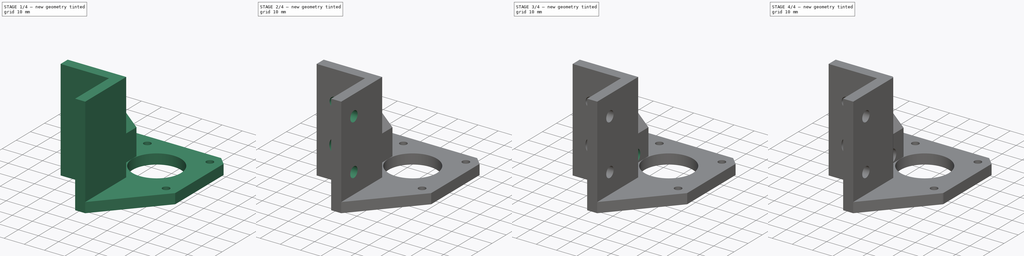
[diagram: build sequence overview — one tinted view per stage of 4, left to right]
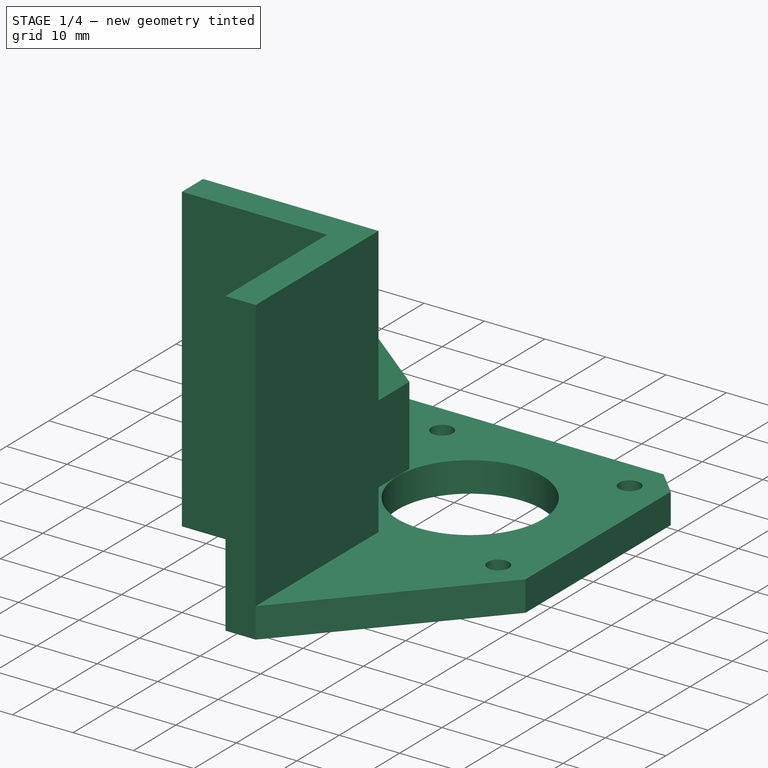
[diagram: stage 1 of 4 — iso view after this stage's code; geometry added in this stage tinted green]
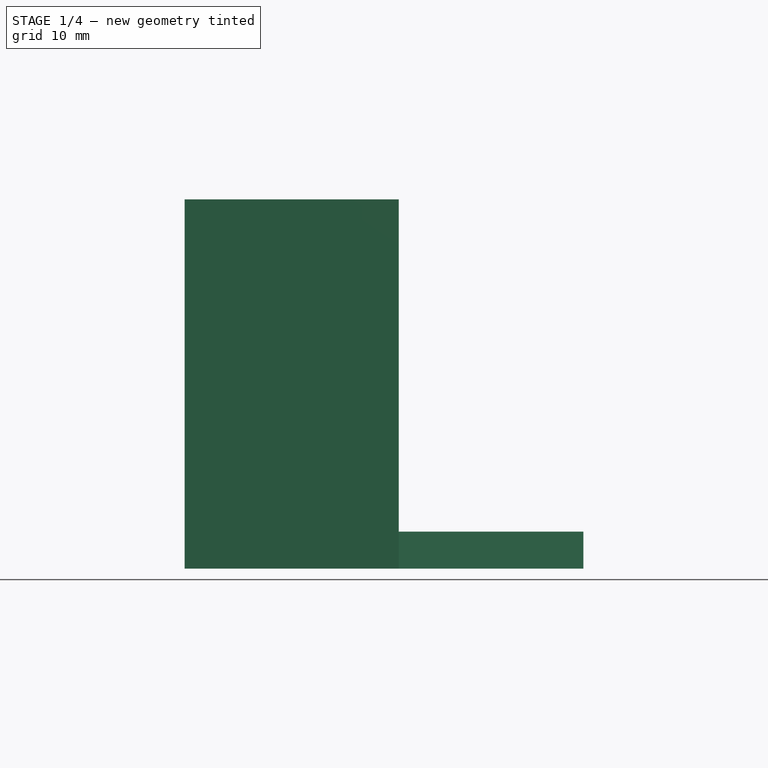
[diagram: stage 1 of 4 — front view after this stage's code; geometry added in this stage tinted green]
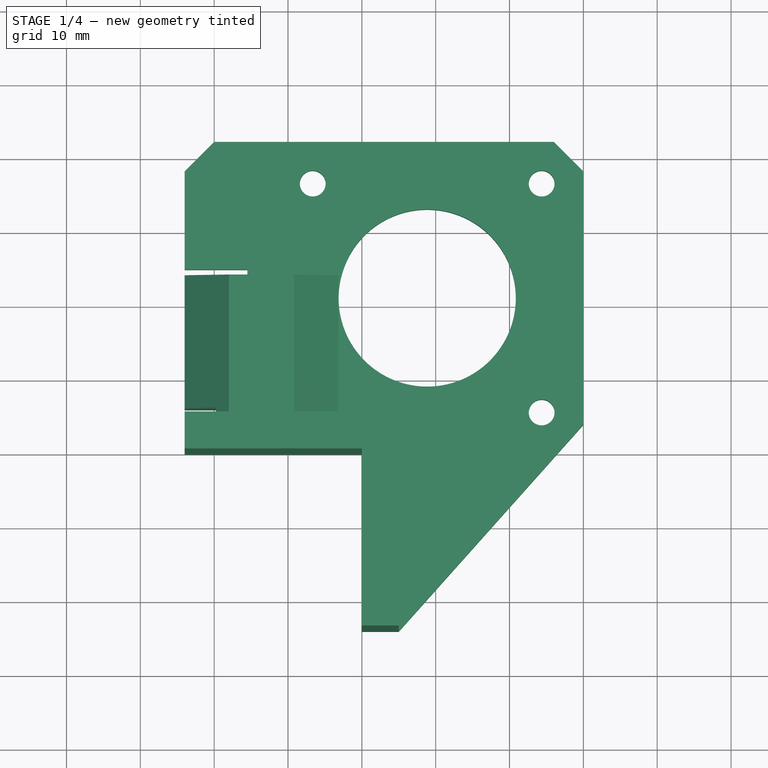
[diagram: stage 1 of 4 — top view after this stage's code; geometry added in this stage tinted green]
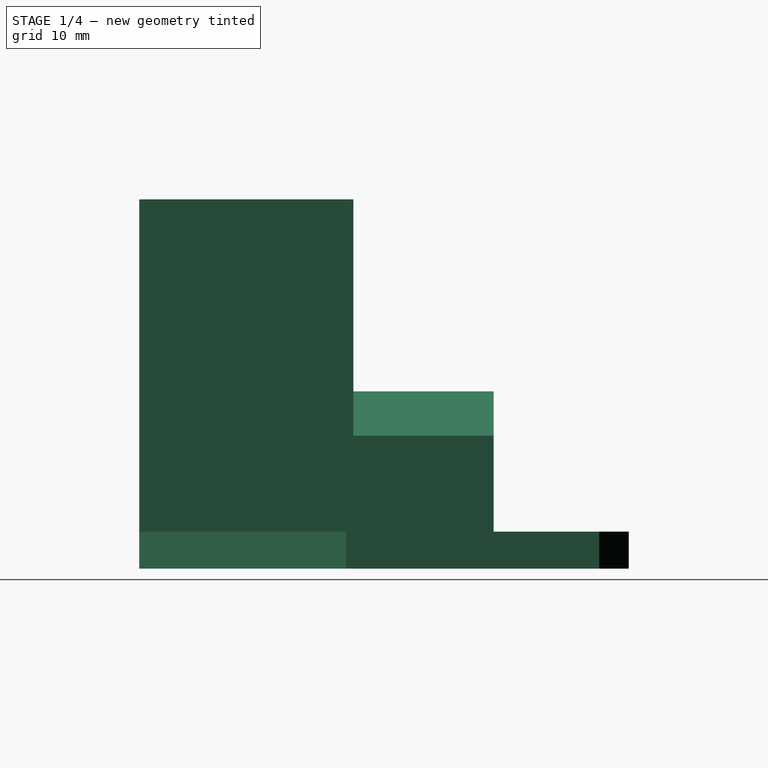
[diagram: stage 1 of 4 — right view after this stage's code; geometry added in this stage tinted green]
FCSTD DOCUMENT  (FreeCAD 0.17R13424 (Git))
Label: Corelia_0_stepper_mount
License: All rights reserved
LicenseURL: http://en.wikipedia.org/wiki/All_rights_reserved
objects: Sketcher::SketchObject×11, PartDesign::Pocket×8, PartDesign::Pad×3, PartDesign::Fillet×2, PartDesign::Chamfer×1, PartDesign::Body×1
note: 37 computed .brp shape members not serialized (recipe doc carries the construction recipe); baked Part::Feature solids carry a one-line shape summary decoded from their .brp

FEATURE [Sketcher::SketchObject] Sketch
  MapMode = 5
  Support = -> [XY_Plane]
  sketch-geometry (21):
    g0: LineSegment StartX=0 StartY=0 StartZ=0 EndX=-24 EndY=0 EndZ=0
    g1: LineSegment StartX=-24 StartY=0 StartZ=0 EndX=-24 EndY=5 EndZ=0
    g2: LineSegment StartX=-24 StartY=5 StartZ=0 EndX=-15.5 EndY=5 EndZ=0
    g3: LineSegment StartX=-15.5 StartY=5 StartZ=0 EndX=-15.5 EndY=25 EndZ=0
    g4: LineSegment StartX=-15.5 StartY=25 StartZ=0 EndX=-24 EndY=25 EndZ=0
    g5: LineSegment StartX=-24 StartY=25 StartZ=0 EndX=-24 EndY=38.3 EndZ=0
    g6: LineSegment StartX=-24 StartY=38.3 StartZ=0 EndX=-20 EndY=42.3 EndZ=0
    g7: LineSegment StartX=-20 StartY=42.3 StartZ=0 EndX=26 EndY=42.3 EndZ=0
    g8: LineSegment StartX=26 StartY=42.3 StartZ=0 EndX=30 EndY=38.3 EndZ=0
    g9: LineSegment StartX=30 StartY=38.3 StartZ=0 EndX=30 EndY=4 EndZ=0
    g10: LineSegment StartX=30 StartY=4 StartZ=0 EndX=5 EndY=-24 EndZ=0
    g11: LineSegment StartX=5 StartY=-24 StartZ=0 EndX=0 EndY=-24 EndZ=0
    g12: LineSegment StartX=0 StartY=-24 StartZ=0 EndX=0 EndY=0 EndZ=0
    g13: Circle CenterX=8.85 CenterY=21.15 CenterZ=0 NormalX=0 NormalY=0 NormalZ=1 AngleXU=0 Radius=12
    g14: LineSegment [constr] StartX=-6.65 StartY=36.65 StartZ=0 EndX=24.35 EndY=36.65 EndZ=0
    g15: LineSegment [constr] StartX=24.35 StartY=36.65 StartZ=0 EndX=24.35 EndY=5.65 EndZ=0
    g16: LineSegment [constr] StartX=24.35 StartY=5.65 StartZ=0 EndX=-6.65 EndY=5.65 EndZ=0
    g17: LineSegment [constr] StartX=-6.65 StartY=5.65 StartZ=0 EndX=-6.65 EndY=36.65 EndZ=0
    g18: Circle CenterX=-6.65 CenterY=36.65 CenterZ=0 NormalX=0 NormalY=0 NormalZ=1 AngleXU=0 Radius=1.75
    g19: Circle CenterX=24.35 CenterY=36.65 CenterZ=0 NormalX=0 NormalY=0 NormalZ=1 AngleXU=0 Radius=1.75
    g20: Circle CenterX=24.35 CenterY=5.65 CenterZ=0 NormalX=0 NormalY=0 NormalZ=1 AngleXU=0 Radius=1.75
  constraints (59):
    c: Coincident(g-1,g0)
    c: PointOnObject(g0,g-1)
    c: Coincident(g0,g1)
    c: Vertical(g1)
    c: Coincident(g1,g2)
    c: Horizontal(g2)
    c: Coincident(g3,g4)
    c: Horizontal(g4)
    c: Coincident(g4,g5)
    c: Vertical(g5)
    c: Coincident(g5,g6)
    c: Coincident(g6,g7)
    c: Horizontal(g7)
    c: Coincident(g7,g8)
    c: Coincident(g8,g9)
    c: Vertical(g9)
    c: Coincident(g9,g10)
    c: Coincident(g10,g11)
    c: Horizontal(g11)
    c: Coincident(g11,g12)
    c: Coincident(g12,g0)
    c: Vertical(g12)
    c: DistanceY(g12,g12) = 24
    c: DistanceX(g0,g0) = 24
    c: DistanceX(g2,g2) = 8.5
    c: Vertical(g3)
    c: DistanceX(g7,g8) = 4
    c: DistanceY(g8,g7) = 4
    c: Equal(g6,g8)
    c: DistanceY(g5,g6) = 4
    c: DistanceY(g9,g7) = 38.3
    c: DistanceY(g0,g6) = 42.3
    c: Radius(g13) = 12
    c: DistanceX(g13) = 8.85
    c: DistanceY(g13) = 21.15
    c: DistanceX(g13,g9) = 21.15
    c: DistanceY(g1,g1) = 5
    c: Coincident(g14,g15)
    c: Coincident(g15,g16)
    c: Coincident(g16,g17)
    c: Coincident(g17,g14)
    c: Horizontal(g14)
    c: Horizontal(g16)
    c: Vertical(g15)
    c: Vertical(g17)
    c: Equal(g17,g14)
    c: DistanceY(g15,g14) = 31
    c: DistanceX(g13,g15) = 15.5
    c: DistanceY(g15,g13) = 15.5
    c: Coincident(g18,g14)
    c: Coincident(g19,g14)
    c: Coincident(g20,g15)
    c: Equal(g18,g19)
    c: Equal(g19,g20)
    c: Radius(g18) = 1.75
    c: Coincident(g3,g2)
    c: DistanceY(g3,g3) = 20
    c: Equal(g4,g2)
    c: DistanceX(g11,g11) = 5
FEATURE [PartDesign::Pad] Pad
  Length = 5
  Length2 = 100
  Profile = -> Sketch
  Type = 0
FEATURE [Sketcher::SketchObject] Sketch001
  MapMode = 5
  Placement = pos=(0,0,5) rot=(0,0,1;0rad)
  Support = -> [Pad]
  sketch-geometry (6):
    g0: LineSegment StartX=0 StartY=0 StartZ=0 EndX=-24 EndY=0 EndZ=0
    g1: LineSegment StartX=-24 StartY=0 StartZ=0 EndX=-24 EndY=5 EndZ=0
    g2: LineSegment StartX=-24 StartY=5 StartZ=0 EndX=5 EndY=5 EndZ=0
    g3: LineSegment StartX=5 StartY=5 StartZ=0 EndX=5 EndY=-24 EndZ=0
    g4: LineSegment StartX=5 StartY=-24 StartZ=0 EndX=0 EndY=-24 EndZ=0
    g5: LineSegment StartX=0 StartY=-24 StartZ=0 EndX=0 EndY=0 EndZ=0
  constraints (17):
    c: Coincident(g-1,g0)
    c: PointOnObject(g0,g-1)
    c: Coincident(g0,g1)
    c: Vertical(g1)
    c: Coincident(g1,g2)
    c: Horizontal(g2)
    c: Coincident(g2,g3)
    c: Vertical(g3)
    c: Coincident(g3,g4)
    c: PointOnObject(g4,g-2)
    c: Horizontal(g4)
    c: Coincident(g4,g5)
    c: Coincident(g5,g0)
    c: Equal(g1,g4)
    c: DistanceY(g1,g1) = 5
    c: Equal(g5,g0)
    c: DistanceY(g5,g5) = 24
FEATURE [PartDesign::Pad] Pad001
  BaseFeature = -> Pad
  Length = 45
  Length2 = 100
  Profile = -> Sketch001
  Type = 0
FEATURE [Sketcher::SketchObject] Sketch002
  MapMode = 5
  Placement = pos=(0,5,0) rot=(0,0.707107,0.707107;3.14159rad)
  Support = -> [Pad001]
  sketch-geometry (8):
    g0: LineSegment StartX=24 StartY=0 StartZ=0 EndX=24 EndY=18 EndZ=0
    g1: LineSegment StartX=24 StartY=18 StartZ=0 EndX=18 EndY=24 EndZ=0
    g2: LineSegment StartX=18 StartY=24 StartZ=0 EndX=9.2 EndY=24 EndZ=0
    g3: LineSegment StartX=9.2 StartY=24 StartZ=0 EndX=3.2 EndY=18 EndZ=0
    g4: LineSegment StartX=3.2 StartY=18 StartZ=0 EndX=3.2 EndY=5 EndZ=0
    g5: LineSegment StartX=3.2 StartY=5 StartZ=0 EndX=16.5 EndY=5 EndZ=0
    g6: LineSegment StartX=16.5 StartY=5 StartZ=0 EndX=16.5 EndY=0 EndZ=0
    g7: LineSegment StartX=16.5 StartY=0 StartZ=0 EndX=24 EndY=0 EndZ=0
  constraints (24):
    c: Vertical(g0)
    c: Coincident(g0,g1)
    c: Coincident(g1,g2)
    c: Horizontal(g2)
    c: Coincident(g2,g3)
    c: Coincident(g3,g4)
    c: Vertical(g4)
    c: DistanceX(g4,g0) = 20.8
    c: DistanceY(g0,g1) = 24
    c: Equal(g3,g1)
    c: Angle(g3,g2) = 2.35619
    c: Angle(g2,g1) = 2.35619
    c: Coincident(g5,g4)
    c: Horizontal(g5)
    c: Coincident(g6,g5)
    c: Vertical(g6)
    c: Coincident(g7,g6)
    c: Horizontal(g7)
    c: Coincident(g7,g0)
    c: DistanceY(g6,g5) = 5
    c: DistanceX(g5) = 16.5
    c: DistanceY(g5) = 5
    c: DistanceX(g7,g7) = 7.5
    c: DistanceY(g0,g0) = 18
FEATURE [PartDesign::Pad] Pad002
  BaseFeature = -> Pad001
  Length = 19
  Length2 = 100
  Profile = -> Sketch002
  Type = 0
FEATURE [Sketcher::SketchObject] Sketch003
  MapMode = 5
  Placement = pos=(0,5,0) rot=(0,0.707107,0.707107;3.14159rad)
  Support = -> [Pad002]
  sketch-geometry (5):
    g0: LineSegment StartX=15.5 StartY=0 StartZ=0 EndX=15.5 EndY=18 EndZ=0
    g1: LineSegment StartX=24 StartY=18 StartZ=0 EndX=24 EndY=0 EndZ=0
    g2: LineSegment StartX=24 StartY=0 StartZ=0 EndX=15.5 EndY=0 EndZ=0
    g3: LineSegment StartX=15.5 StartY=18 StartZ=0 EndX=19.75 EndY=22.25 EndZ=0
    g4: LineSegment StartX=19.75 StartY=22.25 StartZ=0 EndX=24 EndY=18 EndZ=0
  constraints (15):
    c: PointOnObject(g0,g-1)
    c: Vertical(g0)
    c: Vertical(g1)
    c: Coincident(g1,g2)
    c: Horizontal(g2)
    c: Coincident(g2,g0)
    c: DistanceX(g2,g2) = 8.5
    c: DistanceX(g-1,g0) = 15.5
    c: Coincident(g0,g3)
    c: Coincident(g3,g4)
    c: Coincident(g4,g1)
    c: Angle(g0,g3) = 2.35619
    c: Angle(g4,g1) = 2.35619
    c: Equal(g0,g1)
    c: DistanceY(g1,g1) = 18
FEATURE [PartDesign::Pocket] Pocket
  BaseFeature = -> Pad002
  Length = 1
  Length2 = 100
  Profile = -> Sketch003
  Reversed = true
  Type = 0
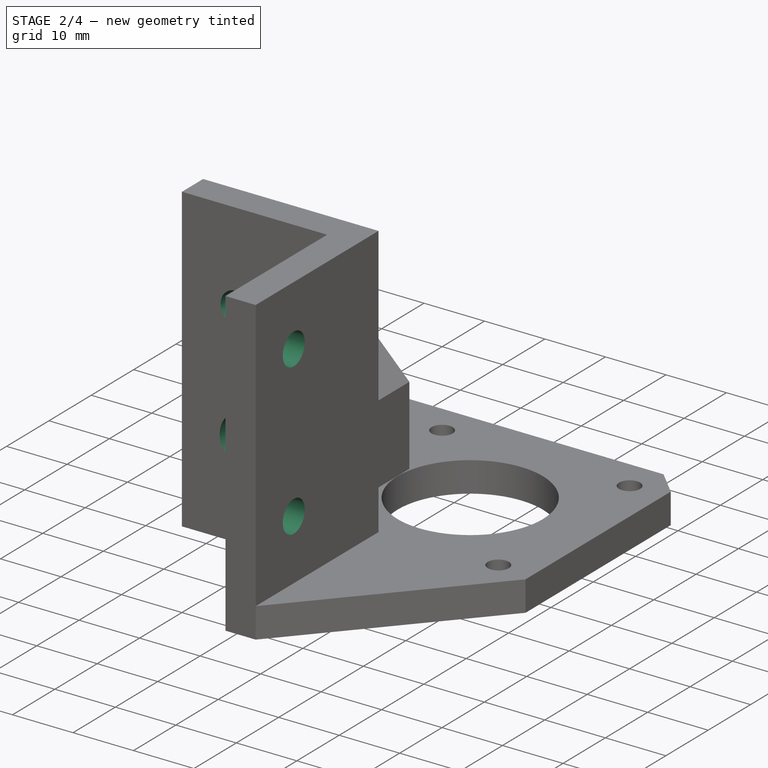
[diagram: stage 2 of 4 — iso view after this stage's code; geometry added in this stage tinted green]
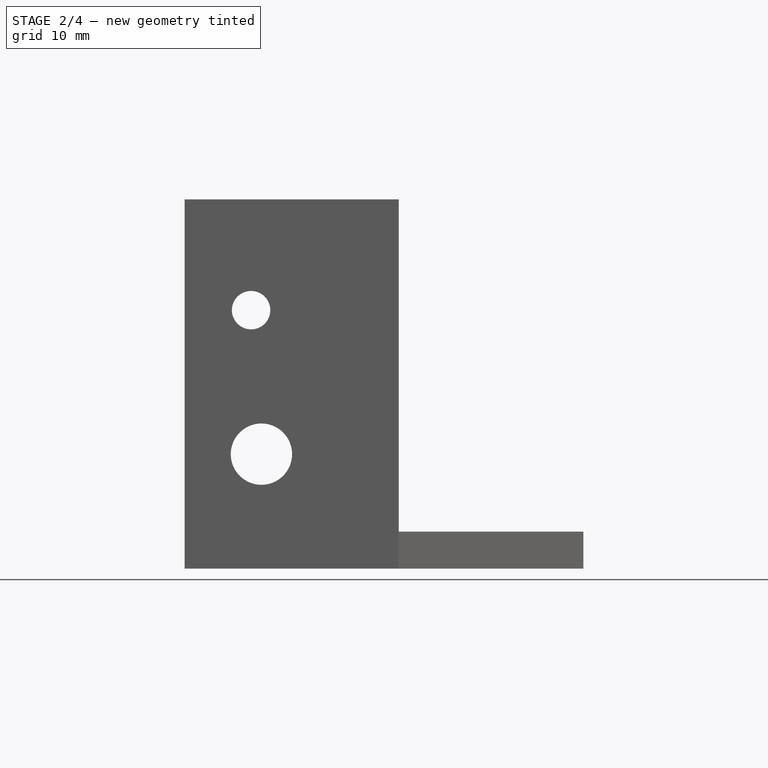
[diagram: stage 2 of 4 — front view after this stage's code; geometry added in this stage tinted green]
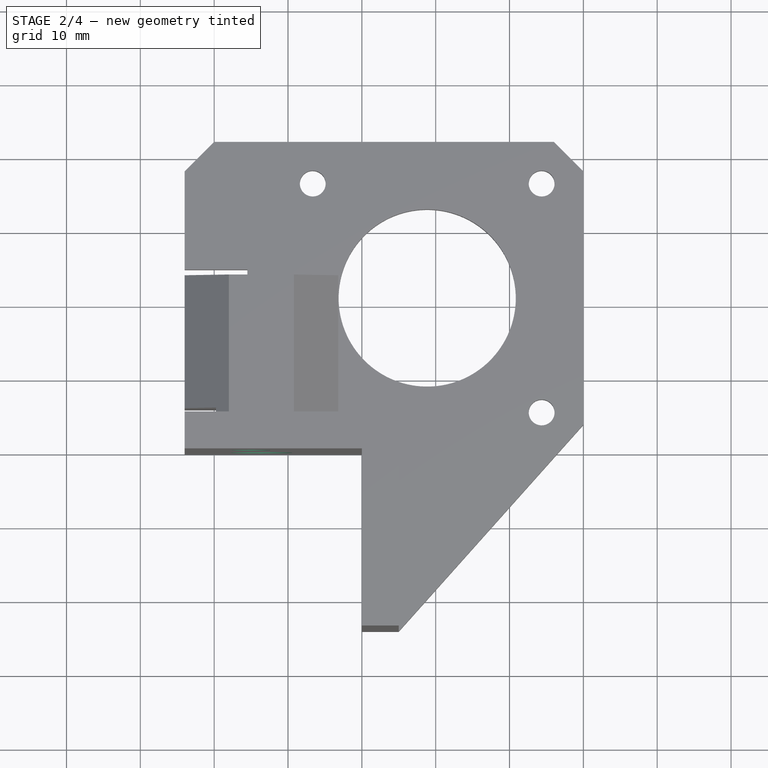
[diagram: stage 2 of 4 — top view after this stage's code; geometry added in this stage tinted green]
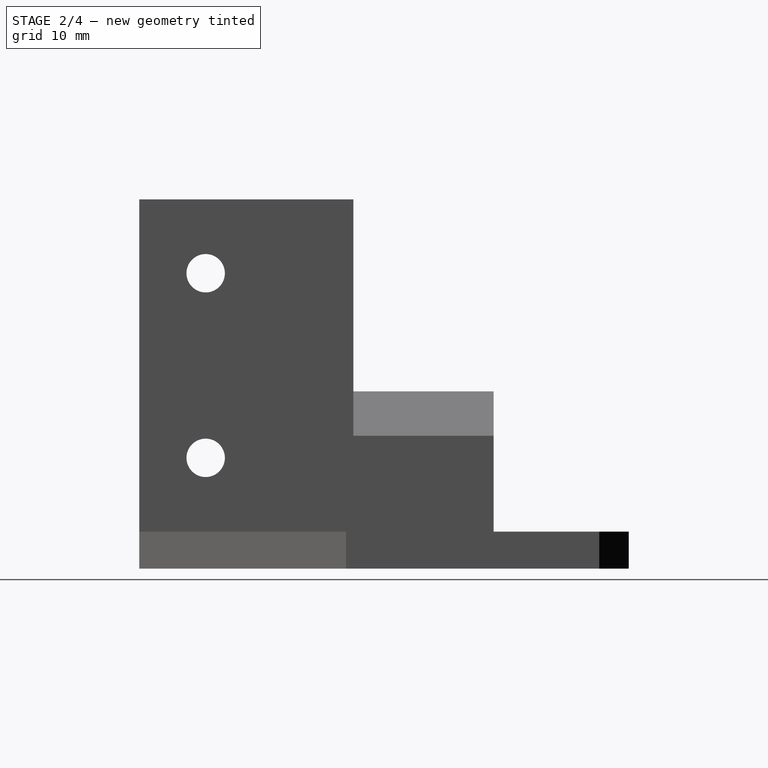
[diagram: stage 2 of 4 — right view after this stage's code; geometry added in this stage tinted green]
FEATURE [Sketcher::SketchObject] Sketch004
  MapMode = 5
  Placement = pos=(0,24,0) rot=(0,0.707107,0.707107;3.14159rad)
  Support = -> [Pocket]
  sketch-geometry (1):
    g0: Circle CenterX=13.6 CenterY=15.5 CenterZ=0 NormalX=0 NormalY=0 NormalZ=1 AngleXU=0 Radius=4.15
  constraints (3):
    c: DistanceX(g0) = 13.6
    c: DistanceY(g0) = 15.5
    c: Radius(g0) = 4.15
FEATURE [PartDesign::Pocket] Pocket001
  BaseFeature = -> Pocket
  Length = 0
  Length2 = 100
  Profile = -> Sketch004
  Type = 1
FEATURE [Sketcher::SketchObject] Sketch005
  MapMode = 5
  Placement = pos=(0,0,0) rot=(1,0,0;1.5708rad)
  Support = -> [Pocket001]
  sketch-geometry (1):
    g0: Circle CenterX=-15 CenterY=35 CenterZ=0 NormalX=0 NormalY=0 NormalZ=1 AngleXU=0 Radius=2.6
  constraints (3):
    c: DistanceX(g0) = -15
    c: DistanceY(g0) = 35
    c: Radius(g0) = 2.6
FEATURE [PartDesign::Pocket] Pocket002
  BaseFeature = -> Pocket001
  Length = 5
  Length2 = 100
  Profile = -> Sketch005
  Type = 1
FEATURE [Sketcher::SketchObject] Sketch006
  MapMode = 5
  Placement = pos=(0,0,0) rot=(0.57735,-0.57735,-0.57735;2.0944rad)
  Support = -> [Pocket002]
  sketch-geometry (2):
    g0: Circle CenterX=15 CenterY=40 CenterZ=0 NormalX=0 NormalY=0 NormalZ=1 AngleXU=0 Radius=2.6
    g1: Circle CenterX=15 CenterY=15 CenterZ=0 NormalX=0 NormalY=0 NormalZ=1 AngleXU=0 Radius=2.6
  constraints (6):
    c: Equal(g0,g1)
    c: DistanceX(g1) = 15
    c: DistanceY(g1) = 15
    c: Radius(g1) = 2.6
    c: DistanceX(g0) = 15
    c: DistanceY(g0) = 40
FEATURE [PartDesign::Pocket] Pocket003
  BaseFeature = -> Pocket002
  Length = 5
  Length2 = 100
  Profile = -> Sketch006
  Type = 0
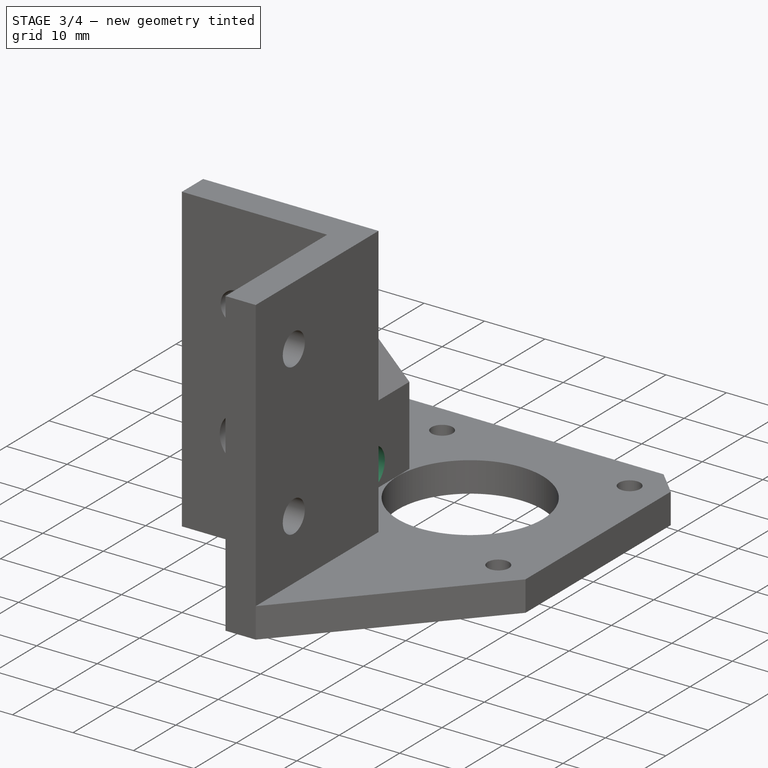
[diagram: stage 3 of 4 — iso view after this stage's code; geometry added in this stage tinted green]
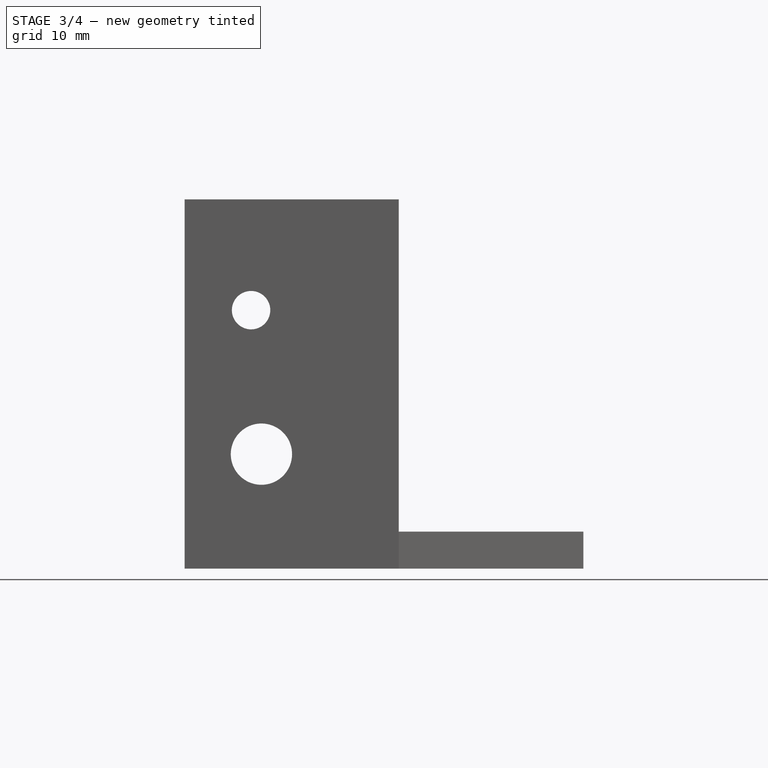
[diagram: stage 3 of 4 — front view after this stage's code; geometry added in this stage tinted green]
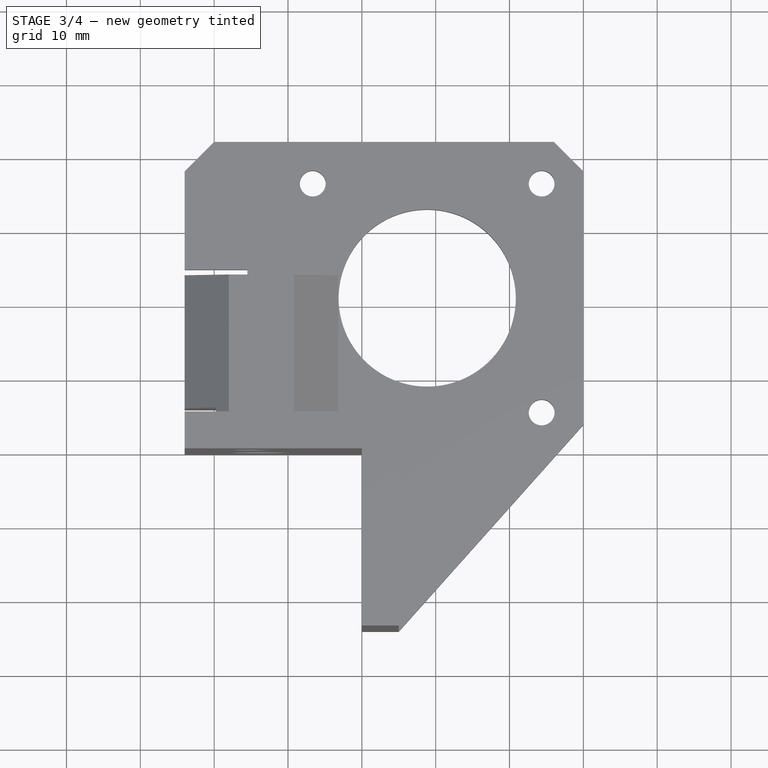
[diagram: stage 3 of 4 — top view after this stage's code; geometry added in this stage tinted green]
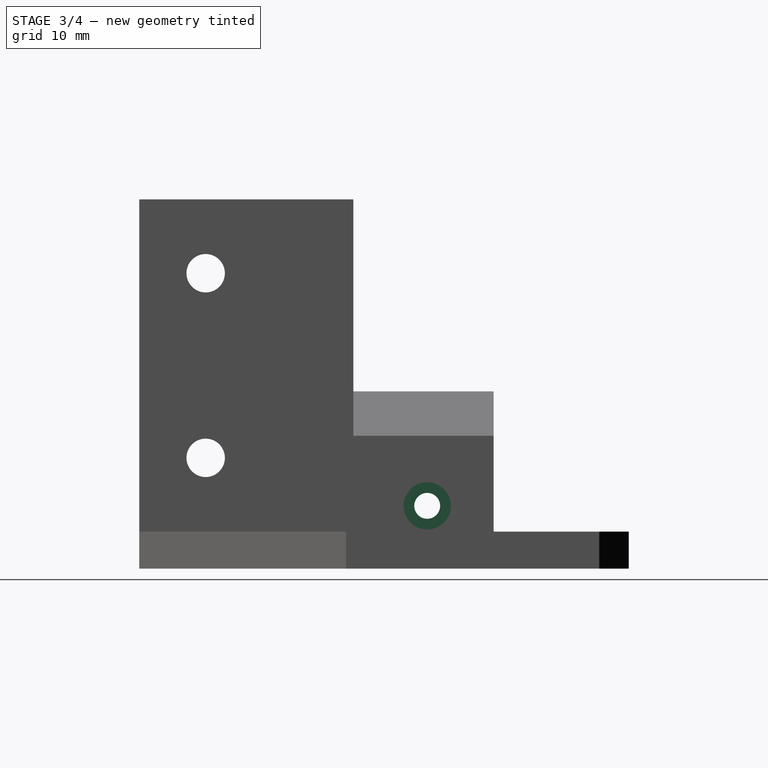
[diagram: stage 3 of 4 — right view after this stage's code; geometry added in this stage tinted green]
FEATURE [Sketcher::SketchObject] Sketch008
  MapMode = 5
  Placement = pos=(-3.2,0,0) rot=(0.57735,0.57735,0.57735;2.0944rad)
  Support = -> [Pocket003]
  sketch-geometry (1):
    g0: Circle CenterX=15 CenterY=8.5 CenterZ=0 NormalX=0 NormalY=0 NormalZ=1 AngleXU=0 Radius=1.75
  constraints (3):
    c: DistanceX(g0) = 15
    c: DistanceY(g0) = 8.5
    c: Radius(g0) = 1.75
FEATURE [PartDesign::Pocket] Pocket004
  BaseFeature = -> Pocket003
  Length = 5
  Length2 = 100
  Profile = -> Sketch008
  Type = 1
FEATURE [Sketcher::SketchObject] Sketch009
  MapMode = 5
  Placement = pos=(-3.2,0,0) rot=(0.57735,0.57735,0.57735;2.0944rad)
  Support = -> [Pocket004]
  sketch-geometry (1):
    g0: Circle CenterX=15 CenterY=8.5 CenterZ=0 NormalX=0 NormalY=0 NormalZ=1 AngleXU=0 Radius=3.2
  constraints (3):
    c: Radius(g0) = 3.2
    c: DistanceX(g0) = 15
    c: DistanceY(g0) = 8.5
FEATURE [PartDesign::Pocket] Pocket005
  BaseFeature = -> Pocket004
  Length = 3
  Length2 = 100
  Profile = -> Sketch009
  Type = 0
FEATURE [Sketcher::SketchObject] Sketch010
  MapMode = 5
  Placement = pos=(-24,0,0) rot=(0.57735,-0.57735,-0.57735;2.0944rad)
  Support = -> [Pocket005]
  sketch-geometry (7):
    g0: LineSegment StartX=-12.1 StartY=6.82568 StartZ=0 EndX=-12.1 EndY=10.1743 EndZ=0
    g1: LineSegment StartX=-12.1 StartY=10.1743 StartZ=0 EndX=-15 EndY=11.8486 EndZ=0
    g2: LineSegment StartX=-15 StartY=11.8486 StartZ=0 EndX=-17.9 EndY=10.1743 EndZ=0
    g3: LineSegment StartX=-17.9 StartY=10.1743 StartZ=0 EndX=-17.9 EndY=6.82568 EndZ=0
    g4: LineSegment StartX=-17.9 StartY=6.82568 StartZ=0 EndX=-15 EndY=5.15137 EndZ=0
    g5: LineSegment StartX=-15 StartY=5.15137 StartZ=0 EndX=-12.1 EndY=6.82568 EndZ=0
    g6: Circle [constr] CenterX=-15 CenterY=8.5 CenterZ=0 NormalX=0 NormalY=0 NormalZ=1 AngleXU=0 Radius=3.34863
  constraints (17):
    c: Coincident(g0,g1)
    c: Coincident(g1,g2)
    c: Coincident(g2,g3)
    c: Coincident(g3,g4)
    c: Coincident(g4,g5)
    c: Coincident(g5,g0)
    c: Equal(g0, g1-g5) x5
    c: PointOnObject(g0,g6)
    c: PointOnObject(g1,g6)
    c: PointOnObject(g2,g6)
    c: PointOnObject(g3,g6)
    c: PointOnObject(g4,g6)
    c: PointOnObject(g5,g6)
    c: Vertical(g0)
    c: DistanceX(g6) = -15
    c: DistanceY(g6) = 8.5
    c: DistanceX(g2,g0) = 5.8
FEATURE [PartDesign::Pocket] Pocket006
  BaseFeature = -> Pocket005
  Length = 4
  Length2 = 100
  Profile = -> Sketch010
  Type = 0
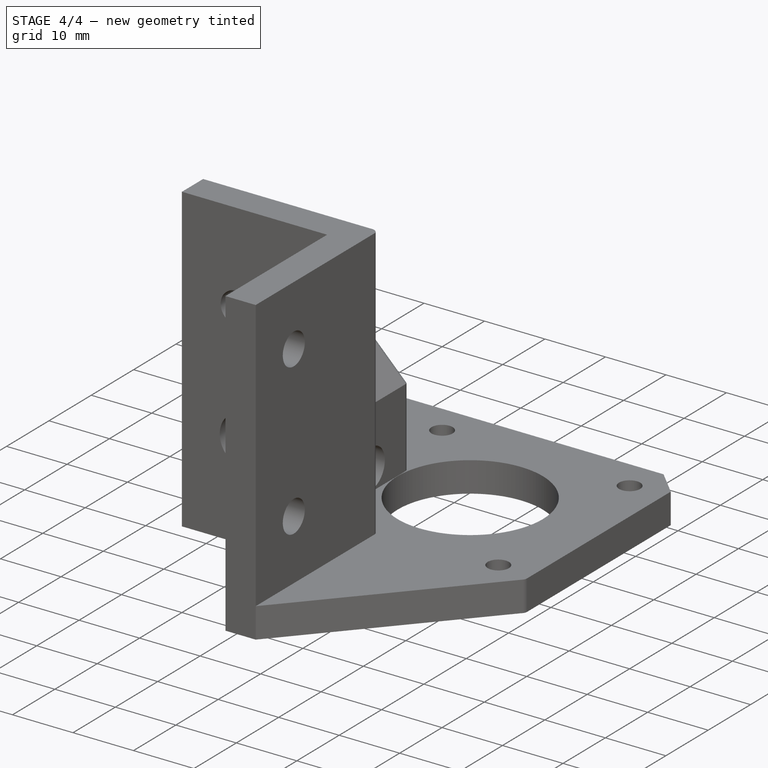
[diagram: stage 4 of 4 — iso view after this stage's code; geometry added in this stage tinted green]
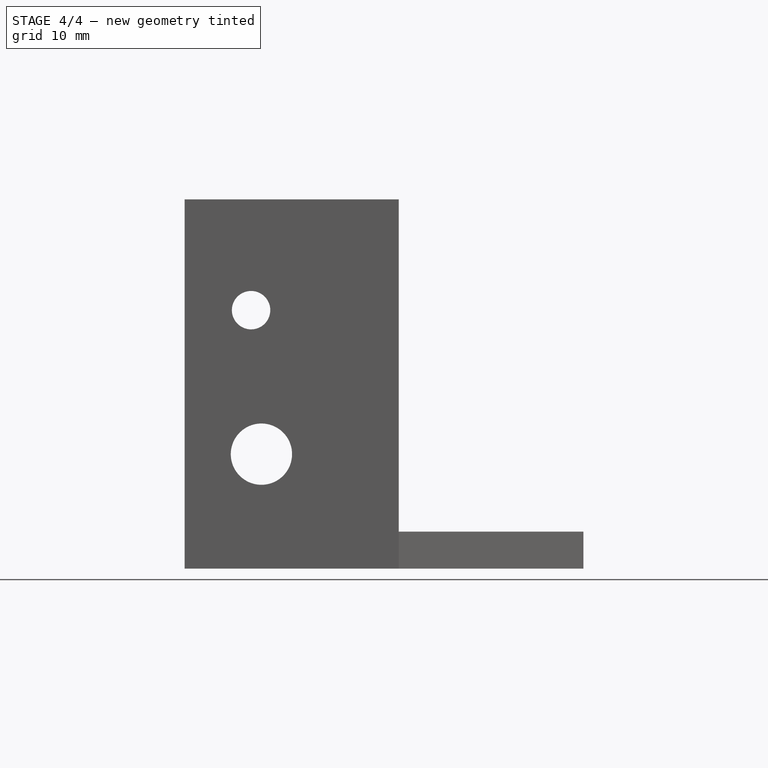
[diagram: stage 4 of 4 — front view after this stage's code; geometry added in this stage tinted green]
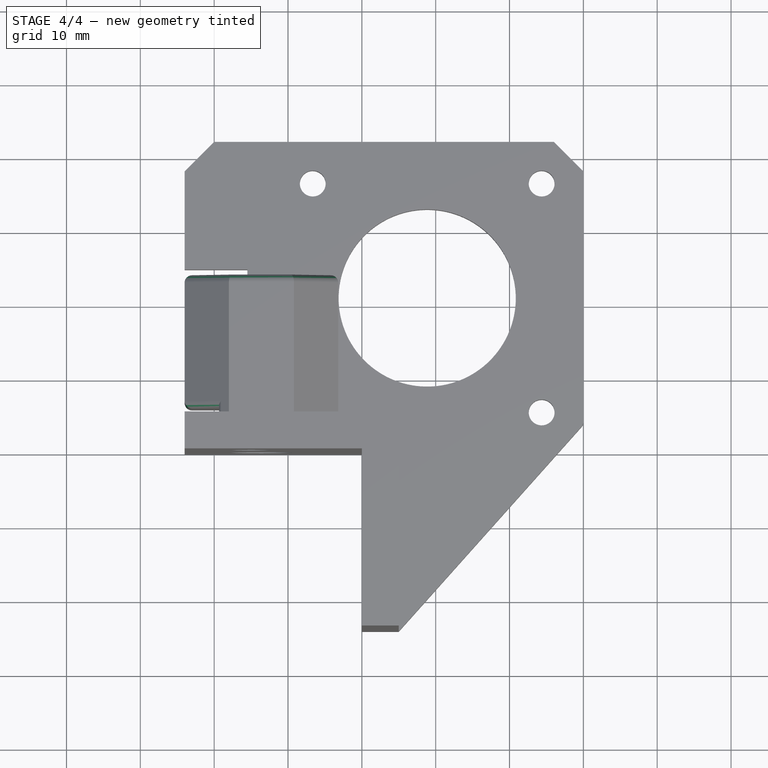
[diagram: stage 4 of 4 — top view after this stage's code; geometry added in this stage tinted green]
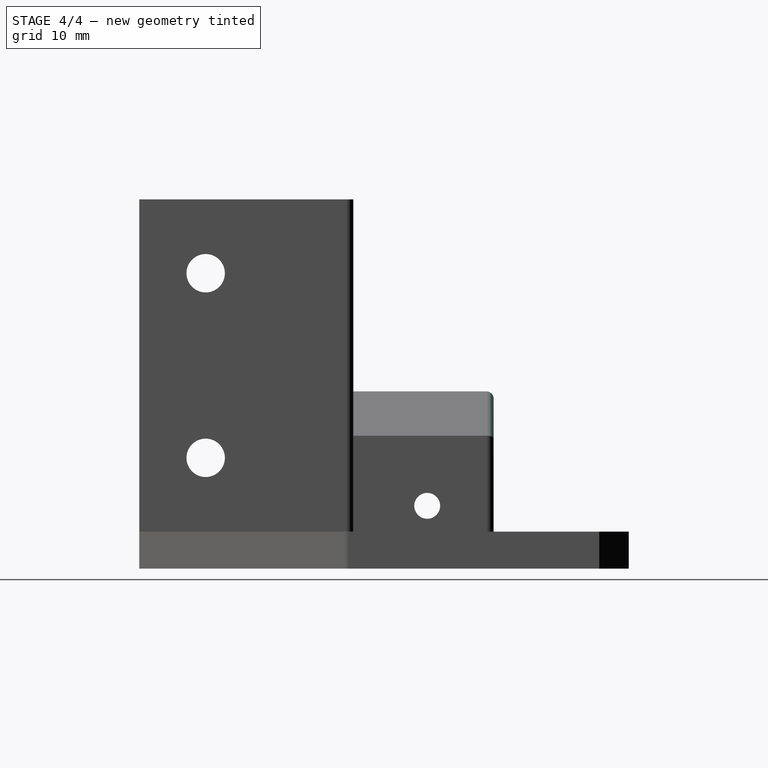
[diagram: stage 4 of 4 — right view after this stage's code; geometry added in this stage tinted green]
FEATURE [Sketcher::SketchObject] Sketch011
  MapMode = 5
  Placement = pos=(0,24,0) rot=(0,0.707107,0.707107;3.14159rad)
  Support = -> [Pocket006]
  sketch-geometry (4):
    g0: LineSegment StartX=15.5 StartY=13 StartZ=0 EndX=16.5 EndY=13 EndZ=0
    g1: LineSegment StartX=16.5 StartY=13 StartZ=0 EndX=16.5 EndY=5 EndZ=0
    g2: LineSegment StartX=16.5 StartY=5 StartZ=0 EndX=15.5 EndY=5 EndZ=0
    g3: LineSegment StartX=15.5 StartY=5 StartZ=0 EndX=15.5 EndY=13 EndZ=0
  constraints (12):
    c: Coincident(g0,g1)
    c: Coincident(g1,g2)
    c: Coincident(g2,g3)
    c: Coincident(g3,g0)
    c: Horizontal(g0)
    c: Horizontal(g2)
    c: Vertical(g1)
    c: Vertical(g3)
    c: DistanceX(g2,g2) = 1
    c: DistanceX(g2) = 15.5
    c: DistanceY(g3,g3) = 8
    c: DistanceY(g2) = 5
FEATURE [PartDesign::Pocket] Pocket007
  BaseFeature = -> Pocket006
  Length = 18.99
  Length2 = 100
  Profile = -> Sketch011
  Type = 0
FEATURE [PartDesign::Fillet] Fillet
  Base = -> Pocket007 [Edge96,Edge113,Edge114,Edge115,Edge116,Edge117,Edge46,Edge119,Edge120,Edge100,Edge124]
  BaseFeature = -> Pocket007
  Radius = 1
FEATURE [PartDesign::Fillet] Fillet001
  Base = -> Fillet [Edge95]
  BaseFeature = -> Fillet
  Radius = 0.5
FEATURE [PartDesign::Chamfer] Chamfer
  Base = -> Fillet001 [Edge22]
  BaseFeature = -> Fillet001
  Size = 0.49
FEATURE [PartDesign::Body] Body
  Group = -> [Sketch,Pad,Sketch001,Pad001,Sketch002,Pad002,Sketch003,Pocket,Sketch004,Pocket001,Sketch005,Pocket002,Sketch006,Pocket003,Sketch008,Pocket004,Sketch009,Pocket005,Sketch010,Pocket006,Sketch011,Pocket007,Fillet,Fillet001,Chamfer]
  Origin = -> Origin
  Tip = -> Chamfer
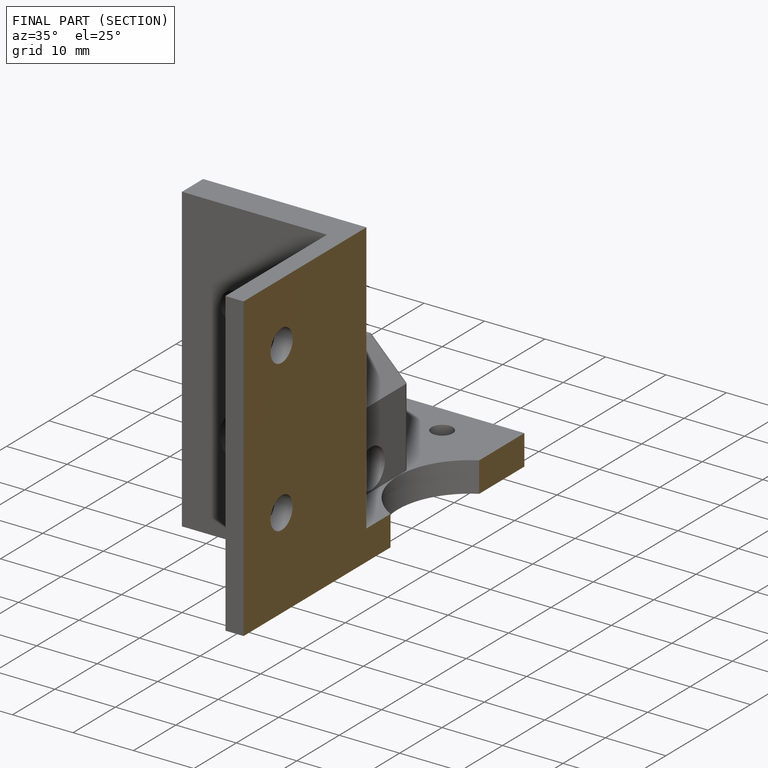
[diagram: finished part — half-section view (interior)]
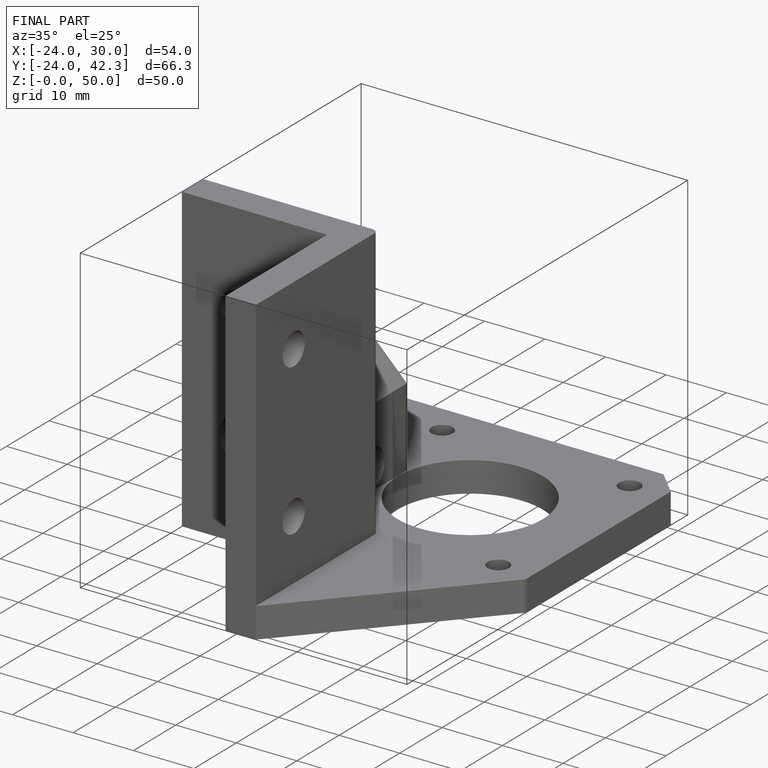
[diagram: finished part — iso view with bounding-box wireframe]
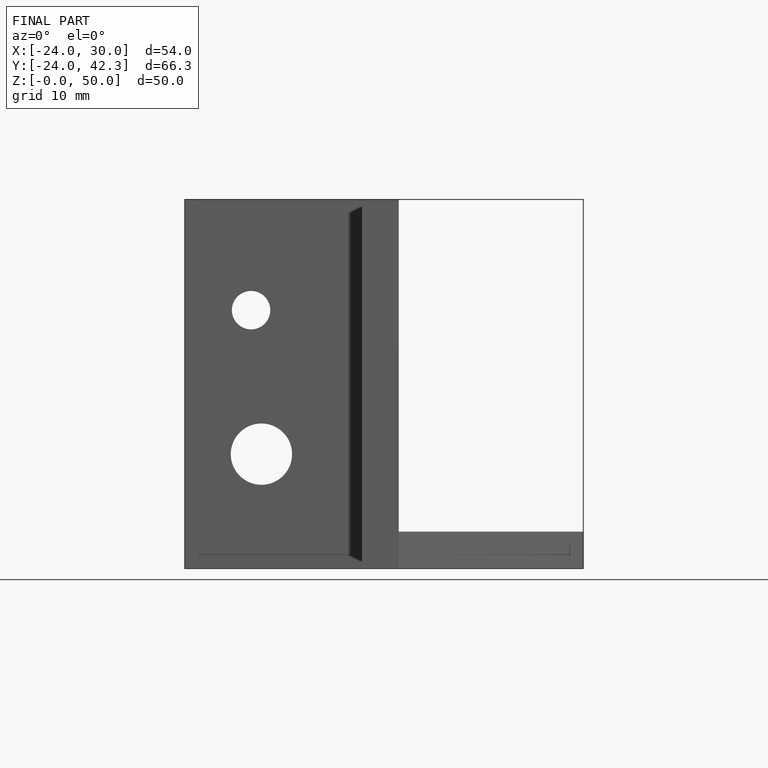
[diagram: finished part — front view with bounding-box wireframe]
